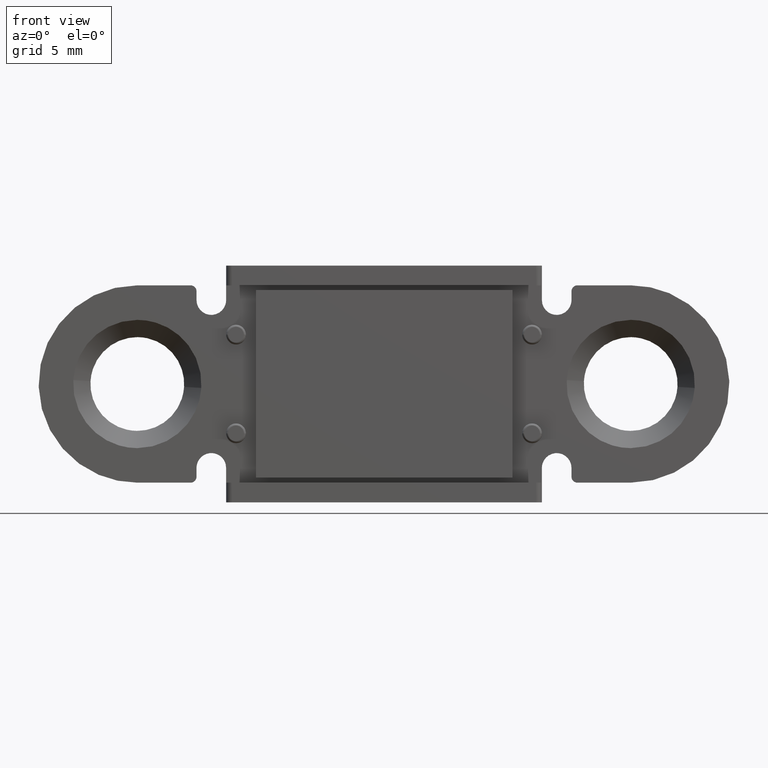
[diagram: clean part render]
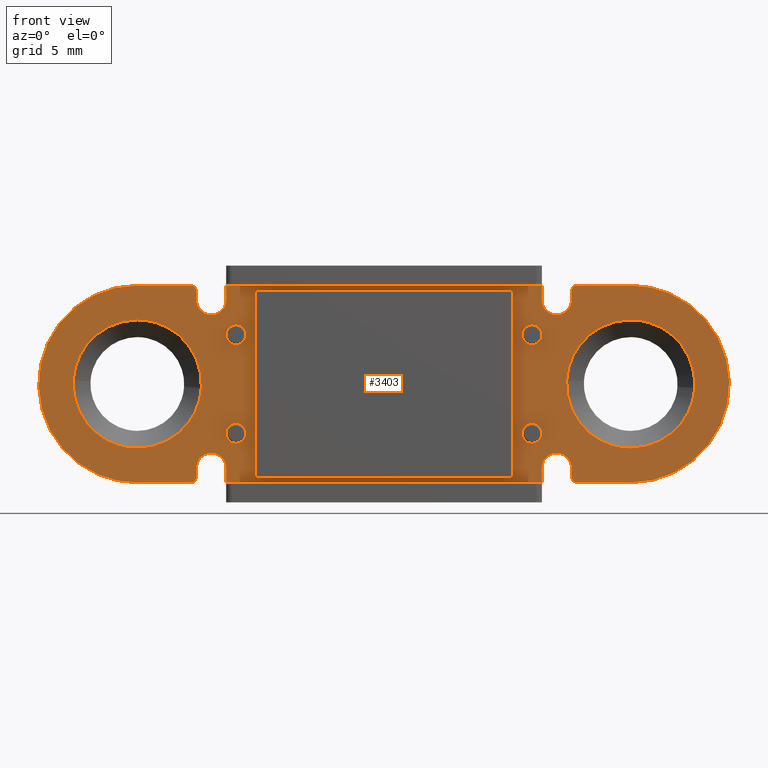
[diagram: same view with one face highlighted and labeled with its STEP entity id]
A machine part, front view. The second image highlights one B-rep face of the part: STEP entity #3403.
In plain terms, the highlighted face is a freeform B-spline surface patch.
Its self-contained STEP definition (entity closure, byte-faithful):
#1850=CARTESIAN_POINT('',(-7.137312547693519,-1.0,2.155822993302452));
#1851=VERTEX_POINT('',#1850);
#1857=CARTESIAN_POINT('',(-7.500000000000000,-1.0,3.0));
#1858=VERTEX_POINT('',#1857);
#1859=CARTESIAN_POINT('',(-7.137312547693519,-1.0,2.155822993302452));
#1860=CARTESIAN_POINT('',(-6.999999999999999,-1.0,2.300520451655222));
#1861=CARTESIAN_POINT('',(-6.999999999999999,-1.0,2.500000000000000));
#1862=CARTESIAN_POINT('',(-6.999999999999999,-1.0,3.0));
#1863=CARTESIAN_POINT('',(-7.500000000000000,-1.0,3.0));
#1871=(BOUNDED_CURVE()B_SPLINE_CURVE(2,(#1859,#1860,#1861,#1862,#1863),.UNSPECIFIED.,.F.,.U.)B_SPLINE_CURVE_WITH_KNOTS((3,2,3),(0.128950590327127,0.250000000000000,0.500000000000000),.UNSPECIFIED.)CURVE()GEOMETRIC_REPRESENTATION_ITEM()RATIONAL_B_SPLINE_CURVE((0.853699670032660,0.858181795061776,1.0,0.707106781186548,1.0))REPRESENTATION_ITEM(''));
#1872=EDGE_CURVE('',#1851,#1858,#1871,.T.);
#1874=CARTESIAN_POINT('',(-7.862687452306481,-1.0,2.844177006697547));
#1875=VERTEX_POINT('',#1874);
#1876=CARTESIAN_POINT('',(-7.500000000000000,-1.0,3.0));
#1877=CARTESIAN_POINT('',(-7.714817182551200,-1.0,3.000000000000000));
#1878=CARTESIAN_POINT('',(-7.862687452306591,-1.0,2.844177006697650));
#1886=(BOUNDED_CURVE()B_SPLINE_CURVE(2,(#1876,#1877,#1878),.UNSPECIFIED.,.F.,.U.)B_SPLINE_CURVE_WITH_KNOTS((3,3),(0.500000000000000,0.628950590327127),.UNSPECIFIED.)CURVE()GEOMETRIC_REPRESENTATION_ITEM()RATIONAL_B_SPLINE_CURVE((1.0,0.848924986124771,0.853699670032660))REPRESENTATION_ITEM(''));
#1887=EDGE_CURVE('',#1858,#1875,#1886,.T.);
#1917=CARTESIAN_POINT('',(-7.500000000000000,-1.0,2.0));
#1918=VERTEX_POINT('',#1917);
#1919=CARTESIAN_POINT('',(-7.862687452306481,-1.0,2.844177006697547));
#1920=CARTESIAN_POINT('',(-8.0,-1.0,2.699479548344777));
#1921=CARTESIAN_POINT('',(-8.0,-1.0,2.500000000000000));
#1922=CARTESIAN_POINT('',(-8.0,-1.0,2.000000000000000));
#1923=CARTESIAN_POINT('',(-7.500000000000000,-1.0,2.0));
#1931=(BOUNDED_CURVE()B_SPLINE_CURVE(2,(#1919,#1920,#1921,#1922,#1923),.UNSPECIFIED.,.F.,.U.)B_SPLINE_CURVE_WITH_KNOTS((3,2,3),(0.628950590327128,0.750000000000000,1.0),.UNSPECIFIED.)CURVE()GEOMETRIC_REPRESENTATION_ITEM()RATIONAL_B_SPLINE_CURVE((0.853699670032660,0.858181795061777,1.0,0.707106781186548,1.0))REPRESENTATION_ITEM(''));
#1932=EDGE_CURVE('',#1875,#1918,#1931,.T.);
#1934=CARTESIAN_POINT('',(-7.500000000000000,-1.0,2.0));
#1935=CARTESIAN_POINT('',(-7.285182817448800,-1.0,2.000000000000000));
#1936=CARTESIAN_POINT('',(-7.137312547693409,-1.0,2.155822993302349));
#1944=(BOUNDED_CURVE()B_SPLINE_CURVE(2,(#1934,#1935,#1936),.UNSPECIFIED.,.F.,.U.)B_SPLINE_CURVE_WITH_KNOTS((3,3),(0.0,0.128950590327127),.UNSPECIFIED.)CURVE()GEOMETRIC_REPRESENTATION_ITEM()RATIONAL_B_SPLINE_CURVE((1.0,0.848924986124772,0.853699670032660))REPRESENTATION_ITEM(''));
#1945=EDGE_CURVE('',#1918,#1851,#1944,.T.);
#1974=CARTESIAN_POINT('',(-7.137312547693519,-1.0,-2.844177006697548));
#1975=VERTEX_POINT('',#1974);
#1981=CARTESIAN_POINT('',(-7.500000000000000,-1.0,-2.0));
#1982=VERTEX_POINT('',#1981);
#1983=CARTESIAN_POINT('',(-7.137312547693519,-1.0,-2.844177006697547));
#1984=CARTESIAN_POINT('',(-6.999999999999999,-1.0,-2.699479548344778));
#1985=CARTESIAN_POINT('',(-6.999999999999999,-1.0,-2.500000000000000));
#1986=CARTESIAN_POINT('',(-6.999999999999999,-1.0,-2.000000000000000));
#1987=CARTESIAN_POINT('',(-7.500000000000000,-1.0,-2.0));
#1995=(BOUNDED_CURVE()B_SPLINE_CURVE(2,(#1983,#1984,#1985,#1986,#1987),.UNSPECIFIED.,.F.,.U.)B_SPLINE_CURVE_WITH_KNOTS((3,2,3),(0.128950590327127,0.250000000000000,0.500000000000000),.UNSPECIFIED.)CURVE()GEOMETRIC_REPRESENTATION_ITEM()RATIONAL_B_SPLINE_CURVE((0.853699670032660,0.858181795061776,1.0,0.707106781186548,1.0))REPRESENTATION_ITEM(''));
#1996=EDGE_CURVE('',#1975,#1982,#1995,.T.);
#1998=CARTESIAN_POINT('',(-7.862687452306481,-1.0,-2.155822993302453));
#1999=VERTEX_POINT('',#1998);
#2000=CARTESIAN_POINT('',(-7.500000000000000,-1.0,-2.0));
#2001=CARTESIAN_POINT('',(-7.714817182551201,-1.0,-2.000000000000000));
#2002=CARTESIAN_POINT('',(-7.862687452306592,-1.0,-2.155822993302350));
#2010=(BOUNDED_CURVE()B_SPLINE_CURVE(2,(#2000,#2001,#2002),.UNSPECIFIED.,.F.,.U.)B_SPLINE_CURVE_WITH_KNOTS((3,3),(0.500000000000000,0.628950590327128),.UNSPECIFIED.)CURVE()GEOMETRIC_REPRESENTATION_ITEM()RATIONAL_B_SPLINE_CURVE((1.0,0.848924986124771,0.853699670032660))REPRESENTATION_ITEM(''));
#2011=EDGE_CURVE('',#1982,#1999,#2010,.T.);
#2041=CARTESIAN_POINT('',(-7.500000000000000,-1.0,-3.0));
#2042=VERTEX_POINT('',#2041);
#2043=CARTESIAN_POINT('',(-7.862687452306481,-1.0,-2.155822993302453));
#2044=CARTESIAN_POINT('',(-8.0,-1.0,-2.300520451655223));
#2045=CARTESIAN_POINT('',(-8.0,-1.0,-2.500000000000000));
#2046=CARTESIAN_POINT('',(-8.0,-1.0,-3.0));
#2047=CARTESIAN_POINT('',(-7.500000000000000,-1.0,-3.0));
#2055=(BOUNDED_CURVE()B_SPLINE_CURVE(2,(#2043,#2044,#2045,#2046,#2047),.UNSPECIFIED.,.F.,.U.)B_SPLINE_CURVE_WITH_KNOTS((3,2,3),(0.628950590327128,0.750000000000000,1.0),.UNSPECIFIED.)CURVE()GEOMETRIC_REPRESENTATION_ITEM()RATIONAL_B_SPLINE_CURVE((0.853699670032660,0.858181795061777,1.0,0.707106781186548,1.0))REPRESENTATION_ITEM(''));
#2056=EDGE_CURVE('',#1999,#2042,#2055,.T.);
#2058=CARTESIAN_POINT('',(-7.500000000000000,-1.0,-3.0));
#2059=CARTESIAN_POINT('',(-7.285182817448800,-1.0,-3.000000000000000));
#2060=CARTESIAN_POINT('',(-7.137312547693409,-1.0,-2.844177006697651));
#2068=(BOUNDED_CURVE()B_SPLINE_CURVE(2,(#2058,#2059,#2060),.UNSPECIFIED.,.F.,.U.)B_SPLINE_CURVE_WITH_KNOTS((3,3),(0.0,0.128950590327127),.UNSPECIFIED.)CURVE()GEOMETRIC_REPRESENTATION_ITEM()RATIONAL_B_SPLINE_CURVE((1.0,0.848924986124772,0.853699670032660))REPRESENTATION_ITEM(''));
#2069=EDGE_CURVE('',#2042,#1975,#2068,.T.);
#2098=CARTESIAN_POINT('',(7.862687452306481,-1.0,-2.844177006697547));
#2099=VERTEX_POINT('',#2098);
#2105=CARTESIAN_POINT('',(7.500000000000000,-1.0,-2.0));
#2106=VERTEX_POINT('',#2105);
#2107=CARTESIAN_POINT('',(7.862687452306481,-1.0,-2.844177006697547));
#2108=CARTESIAN_POINT('',(8.0,-1.0,-2.699479548344777));
#2109=CARTESIAN_POINT('',(8.0,-1.0,-2.500000000000000));
#2110=CARTESIAN_POINT('',(8.0,-1.0,-2.000000000000000));
#2111=CARTESIAN_POINT('',(7.500000000000000,-1.0,-2.0));
#2119=(BOUNDED_CURVE()B_SPLINE_CURVE(2,(#2107,#2108,#2109,#2110,#2111),.UNSPECIFIED.,.F.,.U.)B_SPLINE_CURVE_WITH_KNOTS((3,2,3),(0.128950590327127,0.250000000000000,0.500000000000000),.UNSPECIFIED.)CURVE()GEOMETRIC_REPRESENTATION_ITEM()RATIONAL_B_SPLINE_CURVE((0.853699670032660,0.858181795061776,1.0,0.707106781186548,1.0))REPRESENTATION_ITEM(''));
#2120=EDGE_CURVE('',#2099,#2106,#2119,.T.);
#2122=CARTESIAN_POINT('',(7.137312547693519,-1.0,-2.155822993302452));
#2123=VERTEX_POINT('',#2122);
#2124=CARTESIAN_POINT('',(7.500000000000000,-1.0,-2.0));
#2125=CARTESIAN_POINT('',(7.285182817448800,-1.0,-2.000000000000000));
#2126=CARTESIAN_POINT('',(7.137312547693409,-1.0,-2.155822993302349));
#2134=(BOUNDED_CURVE()B_SPLINE_CURVE(2,(#2124,#2125,#2126),.UNSPECIFIED.,.F.,.U.)B_SPLINE_CURVE_WITH_KNOTS((3,3),(0.500000000000000,0.628950590327127),.UNSPECIFIED.)CURVE()GEOMETRIC_REPRESENTATION_ITEM()RATIONAL_B_SPLINE_CURVE((1.0,0.848924986124772,0.853699670032660))REPRESENTATION_ITEM(''));
#2135=EDGE_CURVE('',#2106,#2123,#2134,.T.);
#2165=CARTESIAN_POINT('',(7.500000000000000,-1.0,-3.0));
#2166=VERTEX_POINT('',#2165);
#2167=CARTESIAN_POINT('',(7.137312547693519,-1.0,-2.155822993302452));
#2168=CARTESIAN_POINT('',(6.999999999999999,-1.0,-2.300520451655222));
#2169=CARTESIAN_POINT('',(6.999999999999999,-1.0,-2.500000000000000));
#2170=CARTESIAN_POINT('',(6.999999999999999,-1.0,-3.0));
#2171=CARTESIAN_POINT('',(7.500000000000000,-1.0,-3.0));
#2179=(BOUNDED_CURVE()B_SPLINE_CURVE(2,(#2167,#2168,#2169,#2170,#2171),.UNSPECIFIED.,.F.,.U.)B_SPLINE_CURVE_WITH_KNOTS((3,2,3),(0.628950590327127,0.750000000000000,1.0),.UNSPECIFIED.)CURVE()GEOMETRIC_REPRESENTATION_ITEM()RATIONAL_B_SPLINE_CURVE((0.853699670032660,0.858181795061776,1.0,0.707106781186548,1.0))REPRESENTATION_ITEM(''));
#2180=EDGE_CURVE('',#2123,#2166,#2179,.T.);
#2182=CARTESIAN_POINT('',(7.500000000000000,-1.0,-3.0));
#2183=CARTESIAN_POINT('',(7.714817182551201,-1.0,-3.000000000000000));
#2184=CARTESIAN_POINT('',(7.862687452306591,-1.0,-2.844177006697651));
#2192=(BOUNDED_CURVE()B_SPLINE_CURVE(2,(#2182,#2183,#2184),.UNSPECIFIED.,.F.,.U.)B_SPLINE_CURVE_WITH_KNOTS((3,3),(0.0,0.128950590327127),.UNSPECIFIED.)CURVE()GEOMETRIC_REPRESENTATION_ITEM()RATIONAL_B_SPLINE_CURVE((1.0,0.848924986124771,0.853699670032660))REPRESENTATION_ITEM(''));
#2193=EDGE_CURVE('',#2166,#2099,#2192,.T.);
#2222=CARTESIAN_POINT('',(7.862687452306481,-1.0,2.155822993302453));
#2223=VERTEX_POINT('',#2222);
#2229=CARTESIAN_POINT('',(7.500000000000000,-1.0,3.0));
#2230=VERTEX_POINT('',#2229);
#2231=CARTESIAN_POINT('',(7.862687452306481,-1.0,2.155822993302453));
#2232=CARTESIAN_POINT('',(8.0,-1.0,2.300520451655223));
#2233=CARTESIAN_POINT('',(8.0,-1.0,2.500000000000000));
#2234=CARTESIAN_POINT('',(8.0,-1.0,3.0));
#2235=CARTESIAN_POINT('',(7.500000000000000,-1.0,3.0));
#2243=(BOUNDED_CURVE()B_SPLINE_CURVE(2,(#2231,#2232,#2233,#2234,#2235),.UNSPECIFIED.,.F.,.U.)B_SPLINE_CURVE_WITH_KNOTS((3,2,3),(0.128950590327128,0.250000000000000,0.500000000000000),.UNSPECIFIED.)CURVE()GEOMETRIC_REPRESENTATION_ITEM()RATIONAL_B_SPLINE_CURVE((0.853699670032660,0.858181795061777,1.0,0.707106781186548,1.0))REPRESENTATION_ITEM(''));
#2244=EDGE_CURVE('',#2223,#2230,#2243,.T.);
#2246=CARTESIAN_POINT('',(7.137312547693519,-1.0,2.844177006697548));
#2247=VERTEX_POINT('',#2246);
#2248=CARTESIAN_POINT('',(7.500000000000000,-1.0,3.0));
#2249=CARTESIAN_POINT('',(7.285182817448800,-1.0,2.999999999999999));
#2250=CARTESIAN_POINT('',(7.137312547693409,-1.0,2.844177006697651));
#2258=(BOUNDED_CURVE()B_SPLINE_CURVE(2,(#2248,#2249,#2250),.UNSPECIFIED.,.F.,.U.)B_SPLINE_CURVE_WITH_KNOTS((3,3),(0.500000000000000,0.628950590327127),.UNSPECIFIED.)CURVE()GEOMETRIC_REPRESENTATION_ITEM()RATIONAL_B_SPLINE_CURVE((1.0,0.848924986124772,0.853699670032660))REPRESENTATION_ITEM(''));
#2259=EDGE_CURVE('',#2230,#2247,#2258,.T.);
#2289=CARTESIAN_POINT('',(7.500000000000000,-1.0,2.0));
#2290=VERTEX_POINT('',#2289);
#2291=CARTESIAN_POINT('',(7.137312547693519,-1.0,2.844177006697547));
#2292=CARTESIAN_POINT('',(6.999999999999999,-1.0,2.699479548344778));
#2293=CARTESIAN_POINT('',(6.999999999999999,-1.0,2.500000000000000));
#2294=CARTESIAN_POINT('',(6.999999999999999,-1.0,2.000000000000000));
#2295=CARTESIAN_POINT('',(7.500000000000000,-1.0,2.0));
#2303=(BOUNDED_CURVE()B_SPLINE_CURVE(2,(#2291,#2292,#2293,#2294,#2295),.UNSPECIFIED.,.F.,.U.)B_SPLINE_CURVE_WITH_KNOTS((3,2,3),(0.628950590327127,0.750000000000000,1.0),.UNSPECIFIED.)CURVE()GEOMETRIC_REPRESENTATION_ITEM()RATIONAL_B_SPLINE_CURVE((0.853699670032660,0.858181795061776,1.0,0.707106781186548,1.0))REPRESENTATION_ITEM(''));
#2304=EDGE_CURVE('',#2247,#2290,#2303,.T.);
#2306=CARTESIAN_POINT('',(7.500000000000000,-1.0,2.0));
#2307=CARTESIAN_POINT('',(7.714817182551203,-1.0,2.000000000000000));
#2308=CARTESIAN_POINT('',(7.862687452306591,-1.0,2.155822993302350));
#2316=(BOUNDED_CURVE()B_SPLINE_CURVE(2,(#2306,#2307,#2308),.UNSPECIFIED.,.F.,.U.)B_SPLINE_CURVE_WITH_KNOTS((3,3),(0.0,0.128950590327128),.UNSPECIFIED.)CURVE()GEOMETRIC_REPRESENTATION_ITEM()RATIONAL_B_SPLINE_CURVE((1.0,0.848924986124771,0.853699670032660))REPRESENTATION_ITEM(''));
#2317=EDGE_CURVE('',#2290,#2223,#2316,.T.);
#2526=CARTESIAN_POINT('',(-9.256061905225348,-1.000000000007094,-0.198407753535645));
#2527=VERTEX_POINT('',#2526);
#2533=CARTESIAN_POINT('',(-12.499999999997719,-1.0,3.249999999897285));
#2534=VERTEX_POINT('',#2533);
#2535=CARTESIAN_POINT('',(-9.256061905225348,-1.000000000007094,-0.198407753535645));
#2536=CARTESIAN_POINT('',(-9.250000000093454,-1.000000000006992,-0.099296480744376));
#2537=CARTESIAN_POINT('',(-9.250000000093563,-1.000000000006884,-4.203926E-013));
#2538=CARTESIAN_POINT('',(-9.250000000097105,-1.000000000003337,3.249999999897080));
#2539=CARTESIAN_POINT('',(-12.499999999997719,-1.0,3.249999999897285));
#2547=(BOUNDED_CURVE()B_SPLINE_CURVE(2,(#2535,#2536,#2537,#2538,#2539),.UNSPECIFIED.,.F.,.U.)B_SPLINE_CURVE_WITH_KNOTS((3,2,3),(0.239332962239139,0.250000000000000,0.500000000000000),.UNSPECIFIED.)CURVE()GEOMETRIC_REPRESENTATION_ITEM()RATIONAL_B_SPLINE_CURVE((0.976072041667137,0.987502787900067,1.0,0.707106781186547,1.0))REPRESENTATION_ITEM(''));
#2548=EDGE_CURVE('',#2527,#2534,#2547,.T.);
#2550=CARTESIAN_POINT('',(-15.743938094770090,-1.000000000007095,0.198407753535645));
#2551=VERTEX_POINT('',#2550);
#2552=CARTESIAN_POINT('',(-12.499999999997719,-1.0,3.249999999897285));
#2553=CARTESIAN_POINT('',(-15.557294717297914,-1.000000000003547,3.249999999897500));
#2554=CARTESIAN_POINT('',(-15.743938094770089,-1.000000000007095,0.198407753535645));
#2562=(BOUNDED_CURVE()B_SPLINE_CURVE(2,(#2552,#2553,#2554),.UNSPECIFIED.,.F.,.U.)B_SPLINE_CURVE_WITH_KNOTS((3,3),(0.500000000000000,0.739332962239139),.UNSPECIFIED.)CURVE()GEOMETRIC_REPRESENTATION_ITEM()RATIONAL_B_SPLINE_CURVE((1.0,0.719603993286481,0.976072041667137))REPRESENTATION_ITEM(''));
#2563=EDGE_CURVE('',#2534,#2551,#2562,.T.);
#2595=CARTESIAN_POINT('',(-12.499999999997719,-1.0,-3.249999999897285));
#2596=VERTEX_POINT('',#2595);
#2597=CARTESIAN_POINT('',(-15.743938094770089,-1.000000000007095,0.198407753535645));
#2598=CARTESIAN_POINT('',(-15.749999999901984,-1.000000000006993,0.099296480744376));
#2599=CARTESIAN_POINT('',(-15.749999999901879,-1.000000000006885,4.205812E-013));
#2600=CARTESIAN_POINT('',(-15.749999999898344,-1.000000000003337,-3.249999999897080));
#2601=CARTESIAN_POINT('',(-12.499999999997719,-1.0,-3.249999999897285));
#2609=(BOUNDED_CURVE()B_SPLINE_CURVE(2,(#2597,#2598,#2599,#2600,#2601),.UNSPECIFIED.,.F.,.U.)B_SPLINE_CURVE_WITH_KNOTS((3,2,3),(0.739332962239139,0.750000000000000,1.0),.UNSPECIFIED.)CURVE()GEOMETRIC_REPRESENTATION_ITEM()RATIONAL_B_SPLINE_CURVE((0.976072041667137,0.987502787900067,1.0,0.707106781186547,1.0))REPRESENTATION_ITEM(''));
#2610=EDGE_CURVE('',#2551,#2596,#2609,.T.);
#2612=CARTESIAN_POINT('',(-12.499999999997719,-1.0,-3.249999999897285));
#2613=CARTESIAN_POINT('',(-9.442705282697528,-1.000000000003547,-3.249999999897500));
#2614=CARTESIAN_POINT('',(-9.256061905225348,-1.000000000007094,-0.198407753535645));
#2622=(BOUNDED_CURVE()B_SPLINE_CURVE(2,(#2612,#2613,#2614),.UNSPECIFIED.,.F.,.U.)B_SPLINE_CURVE_WITH_KNOTS((3,3),(0.0,0.239332962239139),.UNSPECIFIED.)CURVE()GEOMETRIC_REPRESENTATION_ITEM()RATIONAL_B_SPLINE_CURVE((1.0,0.719603993286481,0.976072041667137))REPRESENTATION_ITEM(''));
#2623=EDGE_CURVE('',#2596,#2527,#2622,.T.);
#2830=CARTESIAN_POINT('',(15.743938094774670,-1.000000000007094,-0.198407753535645));
#2831=VERTEX_POINT('',#2830);
#2837=CARTESIAN_POINT('',(12.500000000002300,-1.0,3.249999999897285));
#2838=VERTEX_POINT('',#2837);
#2839=CARTESIAN_POINT('',(15.743938094774677,-1.000000000007094,-0.198407753535645));
#2840=CARTESIAN_POINT('',(15.749999999906571,-1.000000000006992,-0.099296480744376));
#2841=CARTESIAN_POINT('',(15.749999999906461,-1.000000000006884,-4.203657E-013));
#2842=CARTESIAN_POINT('',(15.749999999902911,-1.000000000003337,3.249999999897080));
#2843=CARTESIAN_POINT('',(12.500000000002300,-1.0,3.249999999897285));
#2851=(BOUNDED_CURVE()B_SPLINE_CURVE(2,(#2839,#2840,#2841,#2842,#2843),.UNSPECIFIED.,.F.,.U.)B_SPLINE_CURVE_WITH_KNOTS((3,2,3),(0.239332962239139,0.250000000000000,0.500000000000000),.UNSPECIFIED.)CURVE()GEOMETRIC_REPRESENTATION_ITEM()RATIONAL_B_SPLINE_CURVE((0.976072041667137,0.987502787900067,1.0,0.707106781186547,1.0))REPRESENTATION_ITEM(''));
#2852=EDGE_CURVE('',#2831,#2838,#2851,.T.);
#2854=CARTESIAN_POINT('',(9.256061905229931,-1.000000000007093,0.198407753535645));
#2855=VERTEX_POINT('',#2854);
#2856=CARTESIAN_POINT('',(12.500000000002300,-1.0,3.249999999897285));
#2857=CARTESIAN_POINT('',(9.442705282702109,-1.000000000003547,3.249999999897500));
#2858=CARTESIAN_POINT('',(9.256061905229931,-1.000000000007093,0.198407753535645));
#2866=(BOUNDED_CURVE()B_SPLINE_CURVE(2,(#2856,#2857,#2858),.UNSPECIFIED.,.F.,.U.)B_SPLINE_CURVE_WITH_KNOTS((3,3),(0.500000000000000,0.739332962239139),.UNSPECIFIED.)CURVE()GEOMETRIC_REPRESENTATION_ITEM()RATIONAL_B_SPLINE_CURVE((1.0,0.719603993286481,0.976072041667137))REPRESENTATION_ITEM(''));
#2867=EDGE_CURVE('',#2838,#2855,#2866,.T.);
#2899=CARTESIAN_POINT('',(12.500000000002300,-1.0,-3.249999999897285));
#2900=VERTEX_POINT('',#2899);
#2901=CARTESIAN_POINT('',(9.256061905229931,-1.000000000007093,0.198407753535645));
#2902=CARTESIAN_POINT('',(9.250000000098037,-1.000000000006991,0.099296480744376));
#2903=CARTESIAN_POINT('',(9.250000000098147,-1.000000000006883,4.204734E-013));
#2904=CARTESIAN_POINT('',(9.250000000101688,-1.000000000003336,-3.249999999897080));
#2905=CARTESIAN_POINT('',(12.500000000002300,-1.0,-3.249999999897285));
#2913=(BOUNDED_CURVE()B_SPLINE_CURVE(2,(#2901,#2902,#2903,#2904,#2905),.UNSPECIFIED.,.F.,.U.)B_SPLINE_CURVE_WITH_KNOTS((3,2,3),(0.739332962239139,0.750000000000000,1.0),.UNSPECIFIED.)CURVE()GEOMETRIC_REPRESENTATION_ITEM()RATIONAL_B_SPLINE_CURVE((0.976072041667137,0.987502787900067,1.0,0.707106781186547,1.0))REPRESENTATION_ITEM(''));
#2914=EDGE_CURVE('',#2855,#2900,#2913,.T.);
#2916=CARTESIAN_POINT('',(12.500000000002300,-1.0,-3.249999999897285));
#2917=CARTESIAN_POINT('',(15.557294717302501,-1.000000000003547,-3.249999999897500));
#2918=CARTESIAN_POINT('',(15.743938094774677,-1.000000000007094,-0.198407753535645));
#2926=(BOUNDED_CURVE()B_SPLINE_CURVE(2,(#2916,#2917,#2918),.UNSPECIFIED.,.F.,.U.)B_SPLINE_CURVE_WITH_KNOTS((3,3),(0.0,0.239332962239139),.UNSPECIFIED.)CURVE()GEOMETRIC_REPRESENTATION_ITEM()RATIONAL_B_SPLINE_CURVE((1.0,0.719603993286481,0.976072041667137))REPRESENTATION_ITEM(''));
#2927=EDGE_CURVE('',#2900,#2831,#2926,.T.);
#2974=CARTESIAN_POINT('',(-6.500000000000000,-1.0,-4.750000000000000));
#2975=VERTEX_POINT('',#2974);
#2976=CARTESIAN_POINT('',(6.500000000000000,-1.0,-4.750000000000000));
#2977=VERTEX_POINT('',#2976);
#2978=CARTESIAN_POINT('',(-6.500000000000000,-1.0,-4.750000000000000));
#2979=CARTESIAN_POINT('',(6.500000000000000,-1.0,-4.750000000000000));
#2980=QUASI_UNIFORM_CURVE('',1,(#2978,#2979),.UNSPECIFIED.,.F.,.U.);
#2981=EDGE_CURVE('',#2975,#2977,#2980,.T.);
#3002=CARTESIAN_POINT('',(-6.500000000000000,-1.0,4.750000000000000));
#3003=VERTEX_POINT('',#3002);
#3004=CARTESIAN_POINT('',(-6.500000000000000,-1.0,4.750000000000000));
#3005=CARTESIAN_POINT('',(-6.500000000000000,-1.0,-4.750000000000000));
#3006=QUASI_UNIFORM_CURVE('',1,(#3004,#3005),.UNSPECIFIED.,.F.,.U.);
#3007=EDGE_CURVE('',#3003,#2975,#3006,.T.);
#3024=CARTESIAN_POINT('',(6.500000000000000,-1.0,4.750000000000000));
#3025=VERTEX_POINT('',#3024);
#3026=CARTESIAN_POINT('',(6.500000000000000,-1.0,4.750000000000000));
#3027=CARTESIAN_POINT('',(-6.500000000000000,-1.0,4.750000000000000));
#3028=QUASI_UNIFORM_CURVE('',1,(#3026,#3027),.UNSPECIFIED.,.F.,.U.);
#3029=EDGE_CURVE('',#3025,#3003,#3028,.T.);
#3046=CARTESIAN_POINT('',(6.500000000000000,-1.0,-4.750000000000000));
#3047=CARTESIAN_POINT('',(6.500000000000000,-1.0,4.750000000000000));
#3048=QUASI_UNIFORM_CURVE('',1,(#3046,#3047),.UNSPECIFIED.,.F.,.U.);
#3049=EDGE_CURVE('',#2977,#3025,#3048,.T.);
#3057=CARTESIAN_POINT('',(-19.248249932159169,-1.0,5.499499980618196));
#3058=CARTESIAN_POINT('',(19.248250870932321,-1.0,5.499499980618196));
#3059=CARTESIAN_POINT('',(-19.248249932159169,-1.0,-5.499500248838967));
#3060=CARTESIAN_POINT('',(19.248250870932321,-1.0,-5.499500248838967));
#3061=B_SPLINE_SURFACE_WITH_KNOTS('',1,1,((#3057,#3059),(#3058,#3060)),.UNSPECIFIED.,.F.,.F.,.U.,(2,2),(2,2),(0.0,38.496500803091493),(0.0,10.999000229457160),.UNSPECIFIED.);
#3062=CARTESIAN_POINT('',(8.0,-1.0,5.0));
#3063=VERTEX_POINT('',#3062);
#3064=CARTESIAN_POINT('',(8.0,-1.0,4.250000000000000));
#3065=VERTEX_POINT('',#3064);
#3066=CARTESIAN_POINT('',(8.0,-1.0,5.0));
#3067=CARTESIAN_POINT('',(8.0,-1.0,4.250000000000000));
#3068=QUASI_UNIFORM_CURVE('',1,(#3066,#3067),.UNSPECIFIED.,.F.,.U.);
#3069=EDGE_CURVE('',#3063,#3065,#3068,.T.);
#3070=ORIENTED_EDGE('',*,*,#3069,.F.);
#3071=CARTESIAN_POINT('',(-8.0,-1.0,5.0));
#3072=VERTEX_POINT('',#3071);
#3073=CARTESIAN_POINT('',(8.0,-1.0,5.0));
#3074=CARTESIAN_POINT('',(-8.0,-1.0,5.0));
#3075=QUASI_UNIFORM_CURVE('',1,(#3073,#3074),.UNSPECIFIED.,.F.,.U.);
#3076=EDGE_CURVE('',#3063,#3072,#3075,.T.);
#3077=ORIENTED_EDGE('',*,*,#3076,.T.);
#3078=CARTESIAN_POINT('',(-8.0,-1.0,4.250000000000000));
#3079=VERTEX_POINT('',#3078);
#3080=CARTESIAN_POINT('',(-8.0,-1.0,4.250000000000000));
#3081=CARTESIAN_POINT('',(-8.0,-1.0,5.0));
#3082=QUASI_UNIFORM_CURVE('',1,(#3080,#3081),.UNSPECIFIED.,.F.,.U.);
#3083=EDGE_CURVE('',#3079,#3072,#3082,.T.);
#3084=ORIENTED_EDGE('',*,*,#3083,.F.);
#3085=CARTESIAN_POINT('',(-9.500000000000000,-1.0,4.250000000000000));
#3086=VERTEX_POINT('',#3085);
#3087=CARTESIAN_POINT('',(-9.500000000000000,-1.0,4.250000000000000));
#3088=CARTESIAN_POINT('',(-9.500016626961083,-1.000000000000001,4.188645271297613));
#3089=CARTESIAN_POINT('',(-9.485611320938308,-0.999999999999999,4.072075192640729));
#3090=CARTESIAN_POINT('',(-9.425395710891653,-1.000000000000001,3.910047695973340));
#3091=CARTESIAN_POINT('',(-9.321047874128730,-1.000000000000000,3.749595727682219));
#3092=CARTESIAN_POINT('',(-9.181391093648102,-0.999999999999998,3.626117786455384));
#3093=CARTESIAN_POINT('',(-8.999631338819226,-1.000000000000000,3.534626010993620));
#3094=CARTESIAN_POINT('',(-8.830191544624583,-1.000000000000010,3.496591736536806));
#3095=CARTESIAN_POINT('',(-8.626778792604975,-0.999999999999982,3.501573677383197));
#3096=CARTESIAN_POINT('',(-8.453704809609421,-1.000000000000032,3.551741343362594));
#3097=CARTESIAN_POINT('',(-8.300351636438460,-0.999999999999959,3.643716840962541));
#3098=CARTESIAN_POINT('',(-8.172406724155406,-1.000000000000039,3.759635581731999));
#3099=CARTESIAN_POINT('',(-8.075920863951282,-0.999999999999990,3.904041488922146));
#3100=CARTESIAN_POINT('',(-8.013630469827875,-0.999999999999989,4.078211197569627));
#3101=CARTESIAN_POINT('',(-7.999986458594782,-1.000000000000022,4.188646268768475));
#3102=CARTESIAN_POINT('',(-8.0,-1.0,4.250000000000000));
#3103=B_SPLINE_CURVE_WITH_KNOTS('',3,(#3087,#3088,#3089,#3090,#3091,#3092,#3093,#3094,#3095,#3096,#3097,#3098,#3099,#3100,#3101,#3102),.UNSPECIFIED.,.F.,.U.,(4,1,1,1,1,1,1,1,1,1,1,1,1,4),(0.000000024626654,0.184064472200659,0.349744934137147,0.515430688667708,0.754741668787307,0.902007049962688,1.122908991145674,1.270150938498548,1.509464656154496,1.656740469754691,1.804008147711801,2.024916186930953,2.172190410434741,2.356253616786543),.UNSPECIFIED.);
#3104=EDGE_CURVE('',#3086,#3079,#3103,.T.);
#3105=ORIENTED_EDGE('',*,*,#3104,.F.);
#3106=CARTESIAN_POINT('',(-9.500000000000000,-1.0,4.700000000000000));
#3107=VERTEX_POINT('',#3106);
#3108=CARTESIAN_POINT('',(-9.500000000000000,-1.0,4.700000000000000));
#3109=CARTESIAN_POINT('',(-9.500000000000000,-1.0,4.250000000000000));
#3110=QUASI_UNIFORM_CURVE('',1,(#3108,#3109),.UNSPECIFIED.,.F.,.U.);
#3111=EDGE_CURVE('',#3107,#3086,#3110,.T.);
#3112=ORIENTED_EDGE('',*,*,#3111,.F.);
#3113=CARTESIAN_POINT('',(-9.799999999999999,-1.0,5.0));
#3114=VERTEX_POINT('',#3113);
#3115=CARTESIAN_POINT('',(-9.500000000000000,-1.0,4.700000000000000));
#3116=CARTESIAN_POINT('',(-9.500000000000000,-1.0,4.999999999999999));
#3117=CARTESIAN_POINT('',(-9.799999999999999,-1.0,5.0));
#3125=(BOUNDED_CURVE()B_SPLINE_CURVE(2,(#3115,#3116,#3117),.UNSPECIFIED.,.F.,.U.)CURVE()GEOMETRIC_REPRESENTATION_ITEM()QUASI_UNIFORM_CURVE()RATIONAL_B_SPLINE_CURVE((1.0,0.707106781186547,1.0))REPRESENTATION_ITEM(''));
#3126=EDGE_CURVE('',#3107,#3114,#3125,.T.);
#3127=ORIENTED_EDGE('',*,*,#3126,.T.);
#3128=CARTESIAN_POINT('',(-12.500000000000000,-1.0,4.999999999996359));
#3129=VERTEX_POINT('',#3128);
#3130=CARTESIAN_POINT('',(-12.500000000000000,-1.0,4.999999999996359));
#3131=CARTESIAN_POINT('',(-9.799999999999999,-1.0,5.0));
#3132=QUASI_UNIFORM_CURVE('',1,(#3130,#3131),.UNSPECIFIED.,.F.,.U.);
#3133=EDGE_CURVE('',#3129,#3114,#3132,.T.);
#3134=ORIENTED_EDGE('',*,*,#3133,.F.);
#3135=CARTESIAN_POINT('',(-12.500000000000000,-1.0,-5.0));
#3136=VERTEX_POINT('',#3135);
#3137=CARTESIAN_POINT('',(-12.500000000000000,-1.0,4.999999999996359));
#3138=CARTESIAN_POINT('',(-12.837471256773210,-1.000000000000001,5.000042373397833));
#3139=CARTESIAN_POINT('',(-13.410139001796139,-0.999999999999999,4.941798291406716));
#3140=CARTESIAN_POINT('',(-14.130802863539110,-0.999999999999999,4.739959757672422));
#3141=CARTESIAN_POINT('',(-14.716638994773030,-1.0,4.495190380214840));
#3142=CARTESIAN_POINT('',(-15.296336704443570,-1.000000000000002,4.166816873093154));
#3143=CARTESIAN_POINT('',(-15.838213775873429,-0.999999999999991,3.743922815056382));
#3144=CARTESIAN_POINT('',(-16.358826919885800,-0.999999999999998,3.207090825893454));
#3145=CARTESIAN_POINT('',(-16.821839282590709,-1.000000000000008,2.566556391720688));
#3146=CARTESIAN_POINT('',(-17.195450403761591,-0.999999999999996,1.788971180275687));
#3147=CARTESIAN_POINT('',(-17.407985098695441,-1.000000000000006,1.038800185909330));
#3148=CARTESIAN_POINT('',(-17.515565529180890,-0.999999999999991,0.246902604047202));
#3149=CARTESIAN_POINT('',(-17.495891245083879,-0.999999999999996,-0.554359208761310));
#3150=CARTESIAN_POINT('',(-17.326695954212980,-1.000000000000023,-1.378410137307216));
#3151=CARTESIAN_POINT('',(-17.076592138560439,-0.999999999999956,-2.051228419793382));
#3152=CARTESIAN_POINT('',(-16.767479170995959,-1.000000000000070,-2.629534191125897));
#3153=CARTESIAN_POINT('',(-16.413500861757800,-0.999999999999915,-3.132148296765518));
#3154=CARTESIAN_POINT('',(-16.028172450190660,-1.000000000000014,-3.557273164593561));
#3155=CARTESIAN_POINT('',(-15.483612581036629,-1.000000000000007,-4.038873544940544));
#3156=CARTESIAN_POINT('',(-14.798451128356700,-0.999999999999996,-4.475695507260471));
#3157=CARTESIAN_POINT('',(-14.015019402132250,-1.0,-4.783374118010920));
#3158=CARTESIAN_POINT('',(-13.266972701354479,-1.0,-4.958591804993184));
#3159=CARTESIAN_POINT('',(-12.786340317589231,-1.0,-5.000024638846506));
#3160=CARTESIAN_POINT('',(-12.500000000000000,-1.0,-5.0));
#3161=B_SPLINE_CURVE_WITH_KNOTS('',3,(#3137,#3138,#3139,#3140,#3141,#3142,#3143,#3144,#3145,#3146,#3147,#3148,#3149,#3150,#3151,#3152,#3153,#3154,#3155,#3156,#3157,#3158,#3159,#3160),.UNSPECIFIED.,.F.,.U.,(4,1,1,1,1,1,1,1,1,1,1,1,1,1,1,1,1,1,1,1,1,4),(0.000000072802772,1.012406836403784,1.718058187873551,2.239603829452548,2.914562066498093,3.712238635647310,4.295156795524083,5.154189874847647,6.074591002468290,6.872266567447111,7.485862016923646,8.467577909625371,9.265249590119202,10.001556354241631,10.615155385029690,11.228754447748200,11.842350930080400,12.333229240132200,13.407019088999739,14.266059601757229,14.848970282957650,15.707987909180870),.UNSPECIFIED.);
#3162=EDGE_CURVE('',#3129,#3136,#3161,.T.);
#3163=ORIENTED_EDGE('',*,*,#3162,.T.);
#3164=CARTESIAN_POINT('',(-9.799999999999999,-1.0,-4.999999999999870));
#3165=VERTEX_POINT('',#3164);
#3166=CARTESIAN_POINT('',(-9.799999999999999,-1.0,-4.999999999999870));
#3167=CARTESIAN_POINT('',(-12.500000000000000,-1.0,-5.0));
#3168=QUASI_UNIFORM_CURVE('',1,(#3166,#3167),.UNSPECIFIED.,.F.,.U.);
#3169=EDGE_CURVE('',#3165,#3136,#3168,.T.);
#3170=ORIENTED_EDGE('',*,*,#3169,.F.);
#3171=CARTESIAN_POINT('',(-9.500000000000000,-1.0,-4.699999999999880));
#3172=VERTEX_POINT('',#3171);
#3173=CARTESIAN_POINT('',(-9.799999999999999,-1.0,-4.999999999999880));
#3174=CARTESIAN_POINT('',(-9.500000000000000,-1.0,-4.999999999999881));
#3175=CARTESIAN_POINT('',(-9.500000000000000,-1.0,-4.699999999999880));
#3183=(BOUNDED_CURVE()B_SPLINE_CURVE(2,(#3173,#3174,#3175),.UNSPECIFIED.,.F.,.U.)CURVE()GEOMETRIC_REPRESENTATION_ITEM()QUASI_UNIFORM_CURVE()RATIONAL_B_SPLINE_CURVE((1.0,0.707106781186547,1.0))REPRESENTATION_ITEM(''));
#3184=EDGE_CURVE('',#3165,#3172,#3183,.T.);
#3185=ORIENTED_EDGE('',*,*,#3184,.T.);
#3186=CARTESIAN_POINT('',(-9.500000000000000,-1.0,-4.249999999999885));
#3187=VERTEX_POINT('',#3186);
#3188=CARTESIAN_POINT('',(-9.500000000000000,-1.0,-4.249999999999885));
#3189=CARTESIAN_POINT('',(-9.500000000000000,-1.0,-4.699999999999880));
#3190=QUASI_UNIFORM_CURVE('',1,(#3188,#3189),.UNSPECIFIED.,.F.,.U.);
#3191=EDGE_CURVE('',#3187,#3172,#3190,.T.);
#3192=ORIENTED_EDGE('',*,*,#3191,.F.);
#3193=CARTESIAN_POINT('',(-8.0,-1.0,-4.249999999999885));
#3194=VERTEX_POINT('',#3193);
#3195=CARTESIAN_POINT('',(-8.0,-1.0,-4.249999999999885));
#3196=CARTESIAN_POINT('',(-7.999891432558711,-0.999999999999999,-4.145675653934065));
#3197=CARTESIAN_POINT('',(-8.036415999460948,-1.000000000000002,-3.973973474410853));
#3198=CARTESIAN_POINT('',(-8.156668724036102,-0.999999999999998,-3.778938778397759));
#3199=CARTESIAN_POINT('',(-8.280397386376563,-1.000000000000002,-3.658223136769176));
#3200=CARTESIAN_POINT('',(-8.431457992392383,-1.000000000000002,-3.562550611981839));
#3201=CARTESIAN_POINT('',(-8.631690319345079,-0.999999999999995,-3.496345669423914));
#3202=CARTESIAN_POINT('',(-8.843391475206333,-1.000000000000005,-3.496372402425266));
#3203=CARTESIAN_POINT('',(-9.039479664061590,-1.000000000000000,-3.550668374361478));
#3204=CARTESIAN_POINT('',(-9.218534272776301,-0.999999999999999,-3.649158363754140));
#3205=CARTESIAN_POINT('',(-9.360214529459393,-1.000000000000002,-3.797980109644997));
#3206=CARTESIAN_POINT('',(-9.470650308539485,-0.999999999999997,-4.004637094732663));
#3207=CARTESIAN_POINT('',(-9.500108207331953,-1.000000000000002,-4.151806317646508));
#3208=CARTESIAN_POINT('',(-9.500000000000000,-1.0,-4.249999999999885));
#3209=B_SPLINE_CURVE_WITH_KNOTS('',3,(#3195,#3196,#3197,#3198,#3199,#3200,#3201,#3202,#3203,#3204,#3205,#3206,#3207,#3208),.UNSPECIFIED.,.F.,.U.,(4,1,1,1,1,1,1,1,1,1,1,4),(0.000000024615595,0.312927799011112,0.515430688659626,0.681109972217017,0.828383949672090,1.049287336879404,1.306963670426514,1.454236594368059,1.656740469752019,1.914457984025834,2.061724029076497,2.356253616786607),.UNSPECIFIED.);
#3210=EDGE_CURVE('',#3194,#3187,#3209,.T.);
#3211=ORIENTED_EDGE('',*,*,#3210,.F.);
#3212=CARTESIAN_POINT('',(-8.0,-1.0,-5.0));
#3213=VERTEX_POINT('',#3212);
#3214=CARTESIAN_POINT('',(-8.0,-1.0,-5.0));
#3215=CARTESIAN_POINT('',(-8.0,-1.0,-4.249999999999885));
#3216=QUASI_UNIFORM_CURVE('',1,(#3214,#3215),.UNSPECIFIED.,.F.,.U.);
#3217=EDGE_CURVE('',#3213,#3194,#3216,.T.);
#3218=ORIENTED_EDGE('',*,*,#3217,.F.);
#3219=CARTESIAN_POINT('',(8.0,-1.0,-5.0));
#3220=VERTEX_POINT('',#3219);
#3221=CARTESIAN_POINT('',(-8.0,-1.0,-5.0));
#3222=CARTESIAN_POINT('',(8.0,-1.0,-5.0));
#3223=QUASI_UNIFORM_CURVE('',1,(#3221,#3222),.UNSPECIFIED.,.F.,.U.);
#3224=EDGE_CURVE('',#3213,#3220,#3223,.T.);
#3225=ORIENTED_EDGE('',*,*,#3224,.T.);
#3226=CARTESIAN_POINT('',(8.0,-1.0,-4.249999999999885));
#3227=VERTEX_POINT('',#3226);
#3228=CARTESIAN_POINT('',(8.0,-1.0,-4.249999999999885));
#3229=CARTESIAN_POINT('',(8.0,-1.0,-5.0));
#3230=QUASI_UNIFORM_CURVE('',1,(#3228,#3229),.UNSPECIFIED.,.F.,.U.);
#3231=EDGE_CURVE('',#3227,#3220,#3230,.T.);
#3232=ORIENTED_EDGE('',*,*,#3231,.F.);
#3233=CARTESIAN_POINT('',(9.500000000000000,-1.0,-4.249999999999885));
#3234=VERTEX_POINT('',#3233);
#3235=CARTESIAN_POINT('',(9.500000000000000,-1.0,-4.249999999999885));
#3236=CARTESIAN_POINT('',(9.500008932391609,-1.000000000000000,-4.188647558820258));
#3237=CARTESIAN_POINT('',(9.483366011316578,-1.0,-4.053653572446301));
#3238=CARTESIAN_POINT('',(9.412157578231948,-1.0,-3.881746813280254));
#3239=CARTESIAN_POINT('',(9.290949967056339,-0.999999999999999,-3.718295262559990));
#3240=CARTESIAN_POINT('',(9.130844573677614,-0.999999999999999,-3.590152067965391));
#3241=CARTESIAN_POINT('',(8.905144535600224,-1.000000000000006,-3.503072194011714));
#3242=CARTESIAN_POINT('',(8.668812203823391,-1.0,-3.491458391869253));
#3243=CARTESIAN_POINT('',(8.459590222021841,-0.999999999999998,-3.549394786455490));
#3244=CARTESIAN_POINT('',(8.304915427765510,-1.0,-3.639568127569779));
#3245=CARTESIAN_POINT('',(8.181559743617122,-1.000000000000001,-3.751365227716788));
#3246=CARTESIAN_POINT('',(8.088998718845737,-0.999999999999998,-3.882782555202492));
#3247=CARTESIAN_POINT('',(8.018225378823024,-1.000000000000000,-4.053679956148291));
#3248=CARTESIAN_POINT('',(7.999968565918031,-1.000000000000001,-4.176370182966614));
#3249=CARTESIAN_POINT('',(8.0,-1.0,-4.249999999999885));
#3250=B_SPLINE_CURVE_WITH_KNOTS('',3,(#3235,#3236,#3237,#3238,#3239,#3240,#3241,#3242,#3243,#3244,#3245,#3246,#3247,#3248,#3249),.UNSPECIFIED.,.F.,.U.,(4,1,1,1,1,1,1,1,1,1,1,1,4),(0.000000024625145,0.184064472199401,0.404979254541367,0.552246291878491,0.791561867797104,1.012473312307352,1.270150938498062,1.491053061116719,1.656740469754399,1.804008147711618,1.988101065290408,2.135372156046156,2.356253616786542),.UNSPECIFIED.);
#3251=EDGE_CURVE('',#3234,#3227,#3250,.T.);
#3252=ORIENTED_EDGE('',*,*,#3251,.F.);
#3253=CARTESIAN_POINT('',(9.500000000000000,-1.0,-4.699999999999880));
#3254=VERTEX_POINT('',#3253);
#3255=CARTESIAN_POINT('',(9.500000000000000,-1.0,-4.699999999999880));
#3256=CARTESIAN_POINT('',(9.500000000000000,-1.0,-4.249999999999885));
#3257=QUASI_UNIFORM_CURVE('',1,(#3255,#3256),.UNSPECIFIED.,.F.,.U.);
#3258=EDGE_CURVE('',#3254,#3234,#3257,.T.);
#3259=ORIENTED_EDGE('',*,*,#3258,.F.);
#3260=CARTESIAN_POINT('',(9.799999999999999,-1.0,-5.0));
#3261=VERTEX_POINT('',#3260);
#3262=CARTESIAN_POINT('',(9.500000000000000,-1.0,-4.699999999999880));
#3263=CARTESIAN_POINT('',(9.500000000000000,-1.0,-4.999999999999881));
#3264=CARTESIAN_POINT('',(9.799999999999999,-1.0,-4.999999999999880));
#3272=(BOUNDED_CURVE()B_SPLINE_CURVE(2,(#3262,#3263,#3264),.UNSPECIFIED.,.F.,.U.)CURVE()GEOMETRIC_REPRESENTATION_ITEM()QUASI_UNIFORM_CURVE()RATIONAL_B_SPLINE_CURVE((1.0,0.707106781186547,1.0))REPRESENTATION_ITEM(''));
#3273=EDGE_CURVE('',#3254,#3261,#3272,.T.);
#3274=ORIENTED_EDGE('',*,*,#3273,.T.);
#3275=CARTESIAN_POINT('',(12.500000000000000,-1.0,-4.999999999996359));
#3276=VERTEX_POINT('',#3275);
#3277=CARTESIAN_POINT('',(12.500000000000000,-1.0,-4.999999999996359));
#3278=CARTESIAN_POINT('',(9.799999999999999,-1.0,-5.0));
#3279=QUASI_UNIFORM_CURVE('',1,(#3277,#3278),.UNSPECIFIED.,.F.,.U.);
#3280=EDGE_CURVE('',#3276,#3261,#3279,.T.);
#3281=ORIENTED_EDGE('',*,*,#3280,.F.);
#3282=CARTESIAN_POINT('',(12.500000000000000,-1.0,5.0));
#3283=VERTEX_POINT('',#3282);
#3284=CARTESIAN_POINT('',(12.500000000000000,-1.0,-4.999999999996359));
#3285=CARTESIAN_POINT('',(12.837471256773210,-1.000000000000001,-5.000042373397833));
#3286=CARTESIAN_POINT('',(13.410139001796139,-0.999999999999999,-4.941798291406716));
#3287=CARTESIAN_POINT('',(14.130802863539110,-0.999999999999999,-4.739959757672422));
#3288=CARTESIAN_POINT('',(14.716638994773030,-1.0,-4.495190380214840));
#3289=CARTESIAN_POINT('',(15.296336704443570,-1.000000000000002,-4.166816873093154));
#3290=CARTESIAN_POINT('',(15.838213775873429,-0.999999999999991,-3.743922815056382));
#3291=CARTESIAN_POINT('',(16.358826919885800,-0.999999999999998,-3.207090825893454));
#3292=CARTESIAN_POINT('',(16.821839282590709,-1.000000000000008,-2.566556391720688));
#3293=CARTESIAN_POINT('',(17.195450403761591,-0.999999999999996,-1.788971180275687));
#3294=CARTESIAN_POINT('',(17.407985098695441,-1.000000000000006,-1.038800185909330));
#3295=CARTESIAN_POINT('',(17.515565529180890,-0.999999999999991,-0.246902604047202));
#3296=CARTESIAN_POINT('',(17.495891245083879,-0.999999999999996,0.554359208761310));
#3297=CARTESIAN_POINT('',(17.326695954212980,-1.000000000000023,1.378410137307216));
#3298=CARTESIAN_POINT('',(17.076592138560439,-0.999999999999956,2.051228419793382));
#3299=CARTESIAN_POINT('',(16.767479170995959,-1.000000000000070,2.629534191125897));
#3300=CARTESIAN_POINT('',(16.413500861757800,-0.999999999999915,3.132148296765518));
#3301=CARTESIAN_POINT('',(16.028172450190660,-1.000000000000014,3.557273164593561));
#3302=CARTESIAN_POINT('',(15.483612581036629,-1.000000000000007,4.038873544940544));
#3303=CARTESIAN_POINT('',(14.798451128356700,-0.999999999999996,4.475695507260471));
#3304=CARTESIAN_POINT('',(14.015019402132250,-1.0,4.783374118010920));
#3305=CARTESIAN_POINT('',(13.266972701354479,-1.0,4.958591804993184));
#3306=CARTESIAN_POINT('',(12.786340317589231,-1.0,5.000024638846506));
#3307=CARTESIAN_POINT('',(12.500000000000000,-1.0,5.0));
#3308=B_SPLINE_CURVE_WITH_KNOTS('',3,(#3284,#3285,#3286,#3287,#3288,#3289,#3290,#3291,#3292,#3293,#3294,#3295,#3296,#3297,#3298,#3299,#3300,#3301,#3302,#3303,#3304,#3305,#3306,#3307),.UNSPECIFIED.,.F.,.U.,(4,1,1,1,1,1,1,1,1,1,1,1,1,1,1,1,1,1,1,1,1,4),(0.000000072802772,1.012406836403784,1.718058187873551,2.239603829452548,2.914562066498093,3.712238635647310,4.295156795524083,5.154189874847647,6.074591002468290,6.872266567447111,7.485862016923646,8.467577909625371,9.265249590119202,10.001556354241631,10.615155385029690,11.228754447748200,11.842350930080400,12.333229240132200,13.407019088999739,14.266059601757229,14.848970282957650,15.707987909180870),.UNSPECIFIED.);
#3309=EDGE_CURVE('',#3276,#3283,#3308,.T.);
#3310=ORIENTED_EDGE('',*,*,#3309,.T.);
#3311=CARTESIAN_POINT('',(9.799999999999999,-1.0,5.000000000000131));
#3312=VERTEX_POINT('',#3311);
#3313=CARTESIAN_POINT('',(9.799999999999999,-1.0,5.000000000000131));
#3314=CARTESIAN_POINT('',(12.500000000000000,-1.0,5.0));
#3315=QUASI_UNIFORM_CURVE('',1,(#3313,#3314),.UNSPECIFIED.,.F.,.U.);
#3316=EDGE_CURVE('',#3312,#3283,#3315,.T.);
#3317=ORIENTED_EDGE('',*,*,#3316,.F.);
#3318=CARTESIAN_POINT('',(9.500000000000000,-1.0,4.700000000000130));
#3319=VERTEX_POINT('',#3318);
#3320=CARTESIAN_POINT('',(9.799999999999999,-1.0,5.000000000000131));
#3321=CARTESIAN_POINT('',(9.500000000000000,-1.0,5.000000000000132));
#3322=CARTESIAN_POINT('',(9.500000000000000,-1.0,4.700000000000130));
#3330=(BOUNDED_CURVE()B_SPLINE_CURVE(2,(#3320,#3321,#3322),.UNSPECIFIED.,.F.,.U.)CURVE()GEOMETRIC_REPRESENTATION_ITEM()QUASI_UNIFORM_CURVE()RATIONAL_B_SPLINE_CURVE((1.0,0.707106781186547,1.0))REPRESENTATION_ITEM(''));
#3331=EDGE_CURVE('',#3312,#3319,#3330,.T.);
#3332=ORIENTED_EDGE('',*,*,#3331,.T.);
#3333=CARTESIAN_POINT('',(9.500000000000000,-1.0,4.250000000000000));
#3334=VERTEX_POINT('',#3333);
#3335=CARTESIAN_POINT('',(9.500000000000000,-1.0,4.250000000000000));
#3336=CARTESIAN_POINT('',(9.500000000000000,-1.0,4.700000000000130));
#3337=QUASI_UNIFORM_CURVE('',1,(#3335,#3336),.UNSPECIFIED.,.F.,.U.);
#3338=EDGE_CURVE('',#3334,#3319,#3337,.T.);
#3339=ORIENTED_EDGE('',*,*,#3338,.F.);
#3340=CARTESIAN_POINT('',(8.0,-1.0,4.250000000000000));
#3341=CARTESIAN_POINT('',(7.999991158308205,-0.999999999999999,4.188647724794423));
#3342=CARTESIAN_POINT('',(8.016633513988589,-1.000000000000004,4.053653097224735));
#3343=CARTESIAN_POINT('',(8.087837939001640,-0.999999999999992,3.881741930108385));
#3344=CARTESIAN_POINT('',(8.187035245424893,-1.000000000000014,3.748037102792326));
#3345=CARTESIAN_POINT('',(8.290819721176863,-0.999999999999990,3.651637219781376));
#3346=CARTESIAN_POINT('',(8.441863724363856,-1.000000000000008,3.555910496391493));
#3347=CARTESIAN_POINT('',(8.620609823909708,-0.999999999999998,3.501706106474162));
#3348=CARTESIAN_POINT('',(8.805528712212579,-1.000000000000001,3.497216696060626));
#3349=CARTESIAN_POINT('',(8.957389457229738,-1.000000000000000,3.523560081438170));
#3350=CARTESIAN_POINT('',(9.123645354231964,-1.0,3.590008918808533));
#3351=CARTESIAN_POINT('',(9.268115657388979,-0.999999999999999,3.697170933474836));
#3352=CARTESIAN_POINT('',(9.377614798318479,-1.000000000000003,3.830640903813953));
#3353=CARTESIAN_POINT('',(9.470669929145188,-0.999999999999990,4.004629169990887));
#3354=CARTESIAN_POINT('',(9.500094103758856,-1.000000000000009,4.151808830910742));
#3355=CARTESIAN_POINT('',(9.500000000000000,-1.0,4.250000000000000));
#3356=B_SPLINE_CURVE_WITH_KNOTS('',3,(#3340,#3341,#3342,#3343,#3344,#3345,#3346,#3347,#3348,#3349,#3350,#3351,#3352,#3353,#3354,#3355),.UNSPECIFIED.,.F.,.U.,(4,1,1,1,1,1,1,1,1,1,1,1,1,4),(0.000000024615537,0.184064472190548,0.404979254533430,0.552246291871186,0.681109972216710,0.828383949671743,1.086098577035771,1.233341359590827,1.380606199633507,1.546290390891470,1.767191092378299,1.914457984025803,2.061724029076518,2.356253616786609),.UNSPECIFIED.);
#3357=EDGE_CURVE('',#3065,#3334,#3356,.T.);
#3358=ORIENTED_EDGE('',*,*,#3357,.F.);
#3359=EDGE_LOOP('',(#3070,#3077,#3084,#3105,#3112,#3127,#3134,#3163,#3170,#3185,#3192,#3211,#3218,#3225,#3232,#3252,#3259,#3274,#3281,#3310,#3317,#3332,#3339,#3358));
#3360=FACE_OUTER_BOUND('',#3359,.T.);
#3361=ORIENTED_EDGE('',*,*,#3029,.F.);
#3362=ORIENTED_EDGE('',*,*,#3049,.F.);
#3363=ORIENTED_EDGE('',*,*,#2981,.F.);
#3364=ORIENTED_EDGE('',*,*,#3007,.F.);
#3365=EDGE_LOOP('',(#3361,#3362,#3363,#3364));
#3366=FACE_BOUND('',#3365,.T.);
#3367=ORIENTED_EDGE('',*,*,#2867,.F.);
#3368=ORIENTED_EDGE('',*,*,#2852,.F.);
#3369=ORIENTED_EDGE('',*,*,#2927,.F.);
#3370=ORIENTED_EDGE('',*,*,#2914,.F.);
#3371=EDGE_LOOP('',(#3367,#3368,#3369,#3370));
#3372=FACE_BOUND('',#3371,.T.);
#3373=ORIENTED_EDGE('',*,*,#2563,.F.);
#3374=ORIENTED_EDGE('',*,*,#2548,.F.);
#3375=ORIENTED_EDGE('',*,*,#2623,.F.);
#3376=ORIENTED_EDGE('',*,*,#2610,.F.);
#3377=EDGE_LOOP('',(#3373,#3374,#3375,#3376));
#3378=FACE_BOUND('',#3377,.T.);
#3379=ORIENTED_EDGE('',*,*,#2317,.F.);
#3380=ORIENTED_EDGE('',*,*,#2304,.F.);
#3381=ORIENTED_EDGE('',*,*,#2259,.F.);
#3382=ORIENTED_EDGE('',*,*,#2244,.F.);
#3383=EDGE_LOOP('',(#3379,#3380,#3381,#3382));
#3384=FACE_BOUND('',#3383,.T.);
#3385=ORIENTED_EDGE('',*,*,#2193,.F.);
#3386=ORIENTED_EDGE('',*,*,#2180,.F.);
#3387=ORIENTED_EDGE('',*,*,#2135,.F.);
#3388=ORIENTED_EDGE('',*,*,#2120,.F.);
#3389=EDGE_LOOP('',(#3385,#3386,#3387,#3388));
#3390=FACE_BOUND('',#3389,.T.);
#3391=ORIENTED_EDGE('',*,*,#2069,.F.);
#3392=ORIENTED_EDGE('',*,*,#2056,.F.);
#3393=ORIENTED_EDGE('',*,*,#2011,.F.);
#3394=ORIENTED_EDGE('',*,*,#1996,.F.);
#3395=EDGE_LOOP('',(#3391,#3392,#3393,#3394));
#3396=FACE_BOUND('',#3395,.T.);
#3397=ORIENTED_EDGE('',*,*,#1945,.F.);
#3398=ORIENTED_EDGE('',*,*,#1932,.F.);
#3399=ORIENTED_EDGE('',*,*,#1887,.F.);
#3400=ORIENTED_EDGE('',*,*,#1872,.F.);
#3401=EDGE_LOOP('',(#3397,#3398,#3399,#3400));
#3402=FACE_BOUND('',#3401,.T.);
#3403=ADVANCED_FACE('',(#3360,#3366,#3372,#3378,#3384,#3390,#3396,#3402),#3061,.F.);